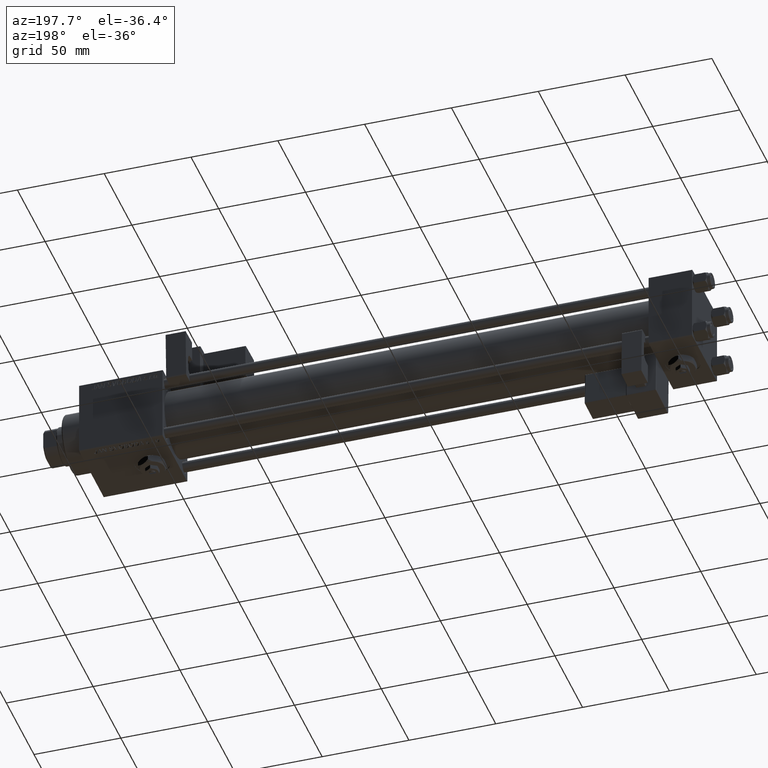
[diagram: clean part render]
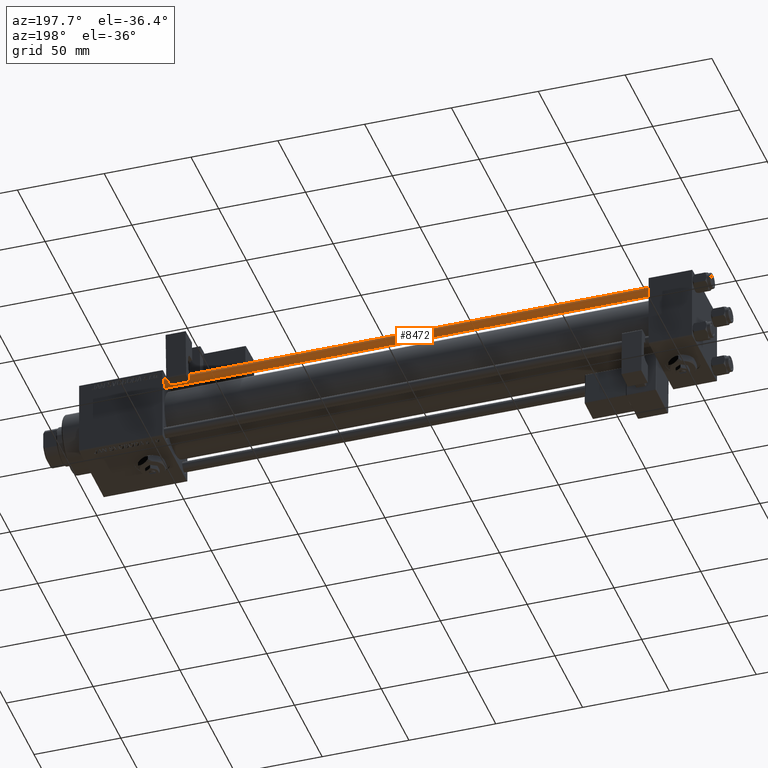
[diagram: same view with one face highlighted and labeled with its STEP entity id]
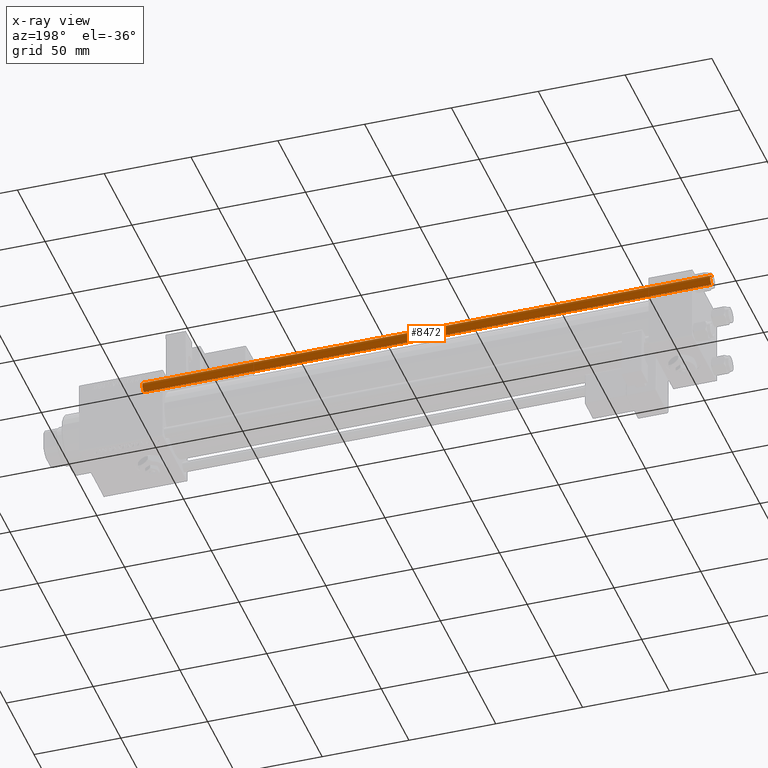
[diagram: x-ray of the same camera — body ghosted, the highlighted face saturated]
A machine part, auxiliary view. The second image highlights one B-rep face of the part: STEP entity #8472.
The next image is the same camera in x-ray: the body ghosted, the highlighted face saturated — about 0% of this face is hidden behind the body in this view.
In plain terms, the highlighted cylindrical surface (edge-blend (fillet) strip) has radius 3 mm, axis along (-1, 0, 0).
Its self-contained STEP definition (entity closure, byte-faithful):
#2266 = ORIENTED_EDGE ( 'NONE', *, *, #55612, .T. ) ;
#3683 = AXIS2_PLACEMENT_3D ( 'NONE', #5030, #22531, #35484 ) ;
#5030 = CARTESIAN_POINT ( 'NONE',  ( 0.000000000000000000, 0.000000000000000000, 327.5000000000000000 ) ) ;
#5080 = DIRECTION ( 'NONE',  ( -0.000000000000000000, -0.000000000000000000, -1.000000000000000000 ) ) ;
#6218 = DIRECTION ( 'NONE',  ( 1.000000000000000000, 0.000000000000000000, 0.000000000000000000 ) ) ;
#7156 = LINE ( 'NONE', #54827, #12096 ) ;
#7493 = CARTESIAN_POINT ( 'NONE',  ( 3.000000000000000444, 3.673940397442060361E-16, 0.5000000000000559552 ) ) ;
#7772 = EDGE_LOOP ( 'NONE', ( #11685, #2266, #45549, #7837 ) ) ;
#7837 = ORIENTED_EDGE ( 'NONE', *, *, #48610, .F. ) ;
#8472 = ADVANCED_FACE ( 'NONE', ( #47966 ), #17508, .T. ) ;
#8876 = CARTESIAN_POINT ( 'NONE',  ( 3.000000000000000444, 3.673940397442060361E-16, 328.0000000000000000 ) ) ;
#9167 = CARTESIAN_POINT ( 'NONE',  ( -3.000000000000000444, 0.000000000000000000, 0.5000000000000559552 ) ) ;
#11685 = ORIENTED_EDGE ( 'NONE', *, *, #13482, .T. ) ;
#12096 = VECTOR ( 'NONE', #15912, 1000.000000000000000 ) ;
#12409 = VECTOR ( 'NONE', #47818, 1000.000000000000000 ) ;
#13210 = EDGE_CURVE ( 'NONE', #20575, #39350, #31631, .T. ) ;
#13482 = EDGE_CURVE ( 'NONE', #22088, #18224, #44254, .T. ) ;
#13695 = LINE ( 'NONE', #8876, #12409 ) ;
#15912 = DIRECTION ( 'NONE',  ( -0.000000000000000000, -0.000000000000000000, -1.000000000000000000 ) ) ;
#17508 = CYLINDRICAL_SURFACE ( 'NONE', #21905, 3.000000000000000444 ) ;
#18224 = VERTEX_POINT ( 'NONE', #52831 ) ;
#20575 = VERTEX_POINT ( 'NONE', #7493 ) ;
#21456 = CARTESIAN_POINT ( 'NONE',  ( 0.000000000000000000, 0.000000000000000000, 328.0000000000000000 ) ) ;
#21905 = AXIS2_PLACEMENT_3D ( 'NONE', #21456, #5080, #30181 ) ;
#22088 = VERTEX_POINT ( 'NONE', #37065 ) ;
#22531 = DIRECTION ( 'NONE',  ( 0.000000000000000000, 0.000000000000000000, -1.000000000000000000 ) ) ;
#23723 = DIRECTION ( 'NONE',  ( -0.000000000000000000, -0.000000000000000000, 1.000000000000000000 ) ) ;
#30181 = DIRECTION ( 'NONE',  ( -1.000000000000000000, 0.000000000000000000, 0.000000000000000000 ) ) ;
#31631 = CIRCLE ( 'NONE', #42428, 3.000000000000000444 ) ;
#32159 = CARTESIAN_POINT ( 'NONE',  ( 0.000000000000000000, 0.000000000000000000, 0.5000000000000559552 ) ) ;
#35484 = DIRECTION ( 'NONE',  ( 1.000000000000000000, 0.000000000000000000, 0.000000000000000000 ) ) ;
#37065 = CARTESIAN_POINT ( 'NONE',  ( -3.000000000000000444, 0.000000000000000000, 327.5000000000000000 ) ) ;
#39350 = VERTEX_POINT ( 'NONE', #9167 ) ;
#42428 = AXIS2_PLACEMENT_3D ( 'NONE', #32159, #23723, #6218 ) ;
#44254 = CIRCLE ( 'NONE', #3683, 3.000000000000000444 ) ;
#45549 = ORIENTED_EDGE ( 'NONE', *, *, #13210, .T. ) ;
#47818 = DIRECTION ( 'NONE',  ( -0.000000000000000000, -0.000000000000000000, -1.000000000000000000 ) ) ;
#47966 = FACE_OUTER_BOUND ( 'NONE', #7772, .T. ) ;
#48610 = EDGE_CURVE ( 'NONE', #22088, #39350, #7156, .T. ) ;
#52831 = CARTESIAN_POINT ( 'NONE',  ( 3.000000000000000444, 3.673940397442060361E-16, 327.5000000000000000 ) ) ;
#54827 = CARTESIAN_POINT ( 'NONE',  ( -3.000000000000000444, 0.000000000000000000, 328.0000000000000000 ) ) ;
#55612 = EDGE_CURVE ( 'NONE', #18224, #20575, #13695, .T. ) ;